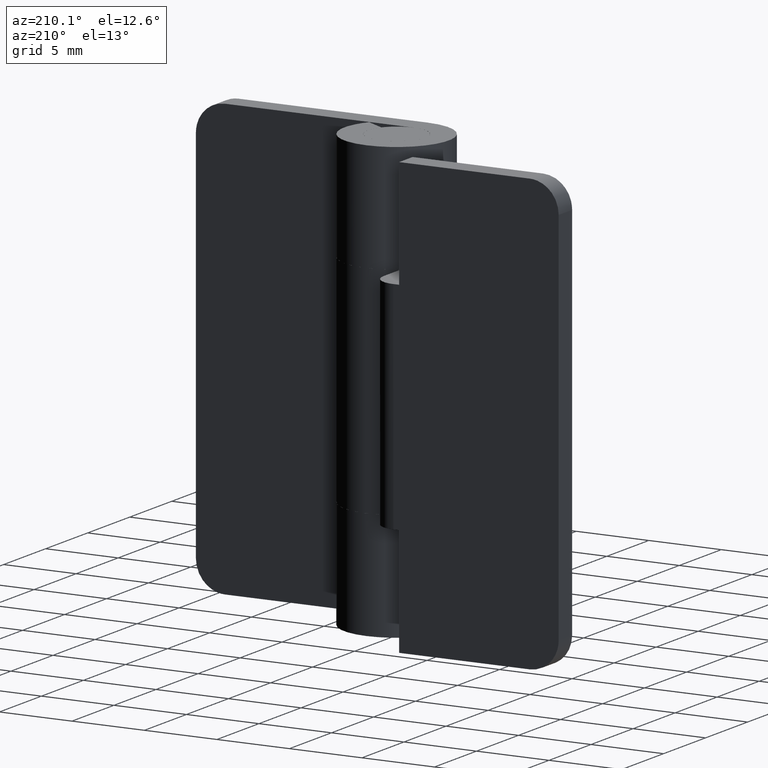
[diagram: clean part render]
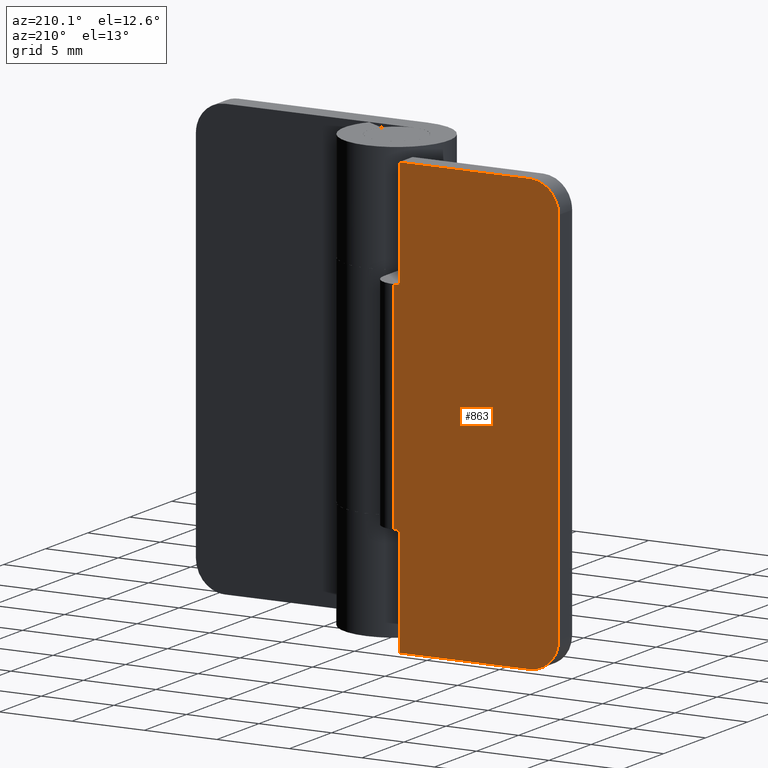
[diagram: same view with one face highlighted and labeled with its STEP entity id]
A machine part, auxiliary view. The second image highlights one B-rep face of the part: STEP entity #863.
In plain terms, the highlighted face is a freeform B-spline surface patch.
Its self-contained STEP definition (entity closure, byte-faithful):
#315=CARTESIAN_POINT('',(-3.600000000000000,6.599999000000000,22.500000000000000));
#316=VERTEX_POINT('',#315);
#337=CARTESIAN_POINT('',(-3.600000000000000,6.599999000000000,7.500000000000000));
#338=VERTEX_POINT('',#337);
#352=CARTESIAN_POINT('',(-3.600000000000000,6.599999000000000,22.500000000000000));
#353=CARTESIAN_POINT('',(-3.600000000000000,6.599999000000000,7.500000000000000));
#354=QUASI_UNIFORM_CURVE('',1,(#352,#353),.UNSPECIFIED.,.F.,.U.);
#355=EDGE_CURVE('',#316,#338,#354,.T.);
#391=CARTESIAN_POINT('',(-13.0,6.599999000000000,30.0));
#392=VERTEX_POINT('',#391);
#398=CARTESIAN_POINT('',(-15.0,6.599999000000000,28.0));
#399=VERTEX_POINT('',#398);
#400=CARTESIAN_POINT('',(-15.0,6.599999000000000,28.0));
#401=CARTESIAN_POINT('',(-14.999999999999995,6.599999000000000,30.000000000000004));
#402=CARTESIAN_POINT('',(-13.0,6.599999000000000,30.0));
#410=(BOUNDED_CURVE()B_SPLINE_CURVE(2,(#400,#401,#402),.UNSPECIFIED.,.F.,.U.)CURVE()GEOMETRIC_REPRESENTATION_ITEM()QUASI_UNIFORM_CURVE()RATIONAL_B_SPLINE_CURVE((1.0,0.707106781186548,1.0))REPRESENTATION_ITEM(''));
#411=EDGE_CURVE('',#399,#392,#410,.T.);
#452=CARTESIAN_POINT('',(-15.0,6.599999000000000,2.0));
#453=VERTEX_POINT('',#452);
#459=CARTESIAN_POINT('',(-13.0,6.599999000000000,0.0));
#460=VERTEX_POINT('',#459);
#461=CARTESIAN_POINT('',(-13.0,6.599999000000000,0.0));
#462=CARTESIAN_POINT('',(-14.999999999999995,6.599999000000000,0.0));
#463=CARTESIAN_POINT('',(-15.0,6.599999000000000,2.0));
#471=(BOUNDED_CURVE()B_SPLINE_CURVE(2,(#461,#462,#463),.UNSPECIFIED.,.F.,.U.)CURVE()GEOMETRIC_REPRESENTATION_ITEM()QUASI_UNIFORM_CURVE()RATIONAL_B_SPLINE_CURVE((1.0,0.707106781186548,1.0))REPRESENTATION_ITEM(''));
#472=EDGE_CURVE('',#460,#453,#471,.T.);
#487=CARTESIAN_POINT('',(-4.0,6.599999000000000,7.500000000000000));
#488=VERTEX_POINT('',#487);
#489=CARTESIAN_POINT('',(-3.600000000000000,6.599999000000000,7.500000000000000));
#490=CARTESIAN_POINT('',(-4.0,6.599999000000000,7.500000000000000));
#491=QUASI_UNIFORM_CURVE('',1,(#489,#490),.UNSPECIFIED.,.F.,.U.);
#492=EDGE_CURVE('',#338,#488,#491,.T.);
#586=CARTESIAN_POINT('',(-4.0,6.599999000000000,22.500000000000000));
#587=VERTEX_POINT('',#586);
#588=CARTESIAN_POINT('',(-3.600000000000000,6.599999000000000,22.500000000000000));
#589=CARTESIAN_POINT('',(-4.0,6.599999000000000,22.500000000000000));
#590=QUASI_UNIFORM_CURVE('',1,(#588,#589),.UNSPECIFIED.,.F.,.U.);
#591=EDGE_CURVE('',#316,#587,#590,.T.);
#791=CARTESIAN_POINT('',(-4.0,6.599999000000000,0.0));
#792=VERTEX_POINT('',#791);
#793=CARTESIAN_POINT('',(-13.0,6.599999000000000,0.0));
#794=CARTESIAN_POINT('',(-4.0,6.599999000000000,0.0));
#795=QUASI_UNIFORM_CURVE('',1,(#793,#794),.UNSPECIFIED.,.F.,.U.);
#796=EDGE_CURVE('',#460,#792,#795,.T.);
#811=CARTESIAN_POINT('',(-4.0,6.599999000000000,30.0));
#812=VERTEX_POINT('',#811);
#813=CARTESIAN_POINT('',(-13.0,6.599999000000000,30.0));
#814=CARTESIAN_POINT('',(-4.0,6.599999000000000,30.0));
#815=QUASI_UNIFORM_CURVE('',1,(#813,#814),.UNSPECIFIED.,.F.,.U.);
#816=EDGE_CURVE('',#392,#812,#815,.T.);
#834=CARTESIAN_POINT('',(-15.569429977904591,6.599999000000000,-1.498499941854179));
#835=CARTESIAN_POINT('',(-15.569429977904591,6.599999000000000,31.498500746516889));
#836=CARTESIAN_POINT('',(-3.030569716323585,6.599999000000000,-1.498499941854179));
#837=CARTESIAN_POINT('',(-3.030569716323585,6.599999000000000,31.498500746516889));
#838=B_SPLINE_SURFACE_WITH_KNOTS('',1,1,((#834,#836),(#835,#837)),.UNSPECIFIED.,.F.,.F.,.U.,(2,2),(2,2),(0.0,32.997000688371067),(0.0,12.538860261581000),.UNSPECIFIED.);
#839=ORIENTED_EDGE('',*,*,#591,.F.);
#840=ORIENTED_EDGE('',*,*,#355,.T.);
#841=ORIENTED_EDGE('',*,*,#492,.T.);
#842=CARTESIAN_POINT('',(-4.0,6.599999000000000,7.500000000000000));
#843=CARTESIAN_POINT('',(-4.0,6.599999000000000,0.0));
#844=QUASI_UNIFORM_CURVE('',1,(#842,#843),.UNSPECIFIED.,.F.,.U.);
#845=EDGE_CURVE('',#488,#792,#844,.T.);
#846=ORIENTED_EDGE('',*,*,#845,.T.);
#847=ORIENTED_EDGE('',*,*,#796,.F.);
#848=ORIENTED_EDGE('',*,*,#472,.T.);
#849=CARTESIAN_POINT('',(-15.0,6.599999000000000,28.0));
#850=CARTESIAN_POINT('',(-15.0,6.599999000000000,2.0));
#851=QUASI_UNIFORM_CURVE('',1,(#849,#850),.UNSPECIFIED.,.F.,.U.);
#852=EDGE_CURVE('',#399,#453,#851,.T.);
#853=ORIENTED_EDGE('',*,*,#852,.F.);
#854=ORIENTED_EDGE('',*,*,#411,.T.);
#855=ORIENTED_EDGE('',*,*,#816,.T.);
#856=CARTESIAN_POINT('',(-4.0,6.599999000000000,30.0));
#857=CARTESIAN_POINT('',(-4.0,6.599999000000000,22.500000000000000));
#858=QUASI_UNIFORM_CURVE('',1,(#856,#857),.UNSPECIFIED.,.F.,.U.);
#859=EDGE_CURVE('',#812,#587,#858,.T.);
#860=ORIENTED_EDGE('',*,*,#859,.T.);
#861=EDGE_LOOP('',(#839,#840,#841,#846,#847,#848,#853,#854,#855,#860));
#862=FACE_OUTER_BOUND('',#861,.T.);
#863=ADVANCED_FACE('',(#862),#838,.T.);